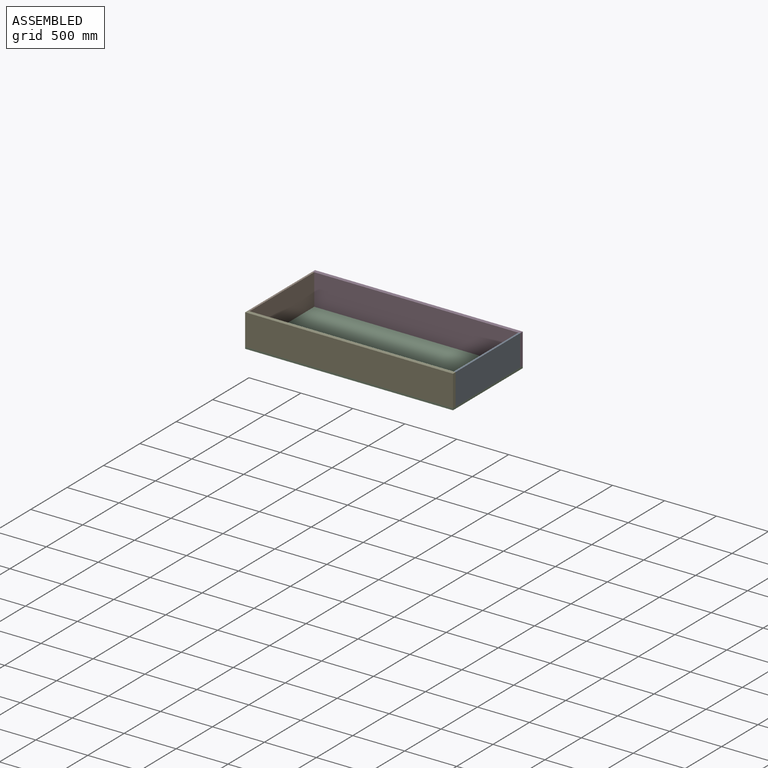
[diagram: assembled view]
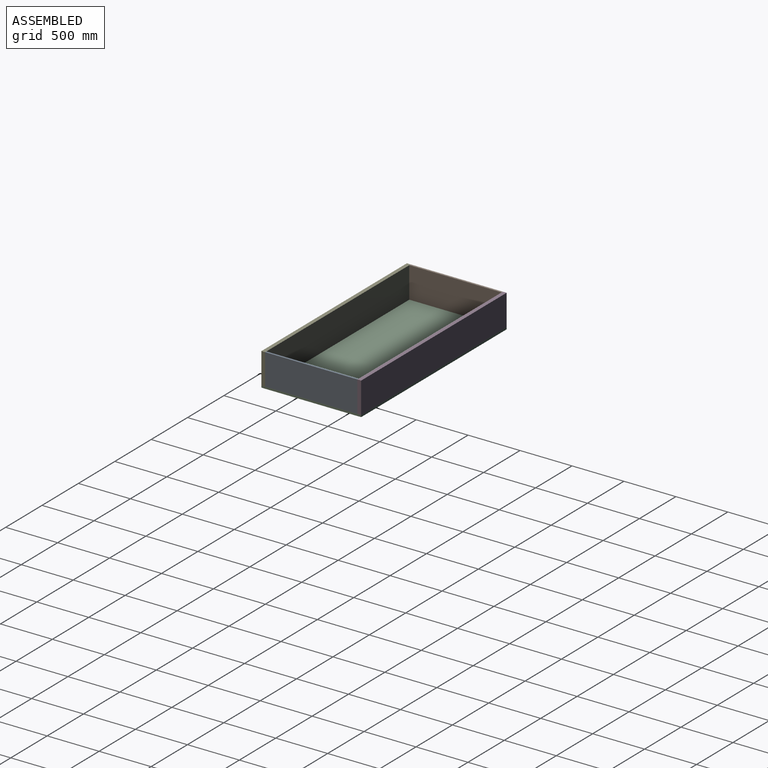
[diagram: assembled view, second angle]
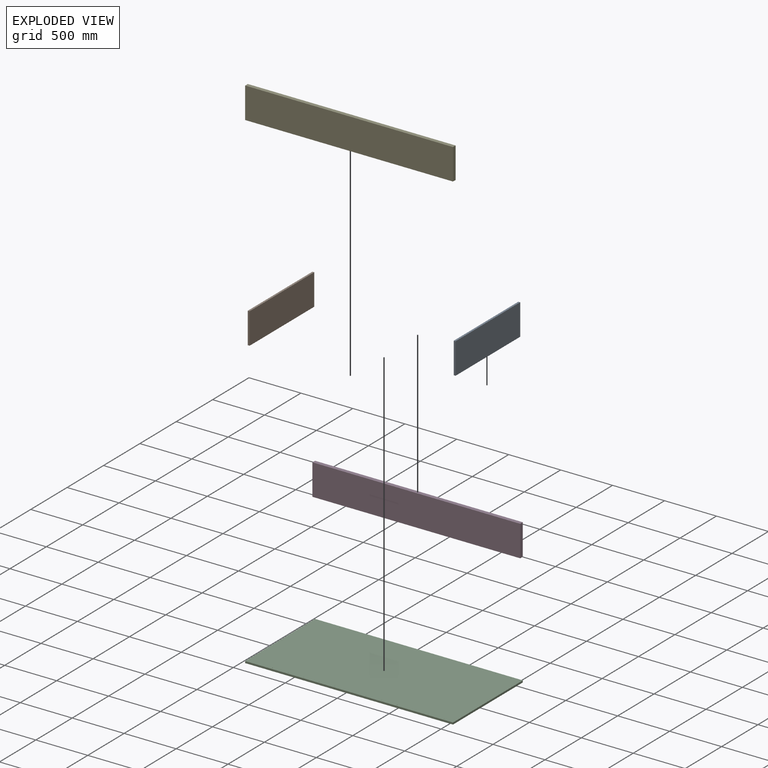
[diagram: exploded view]
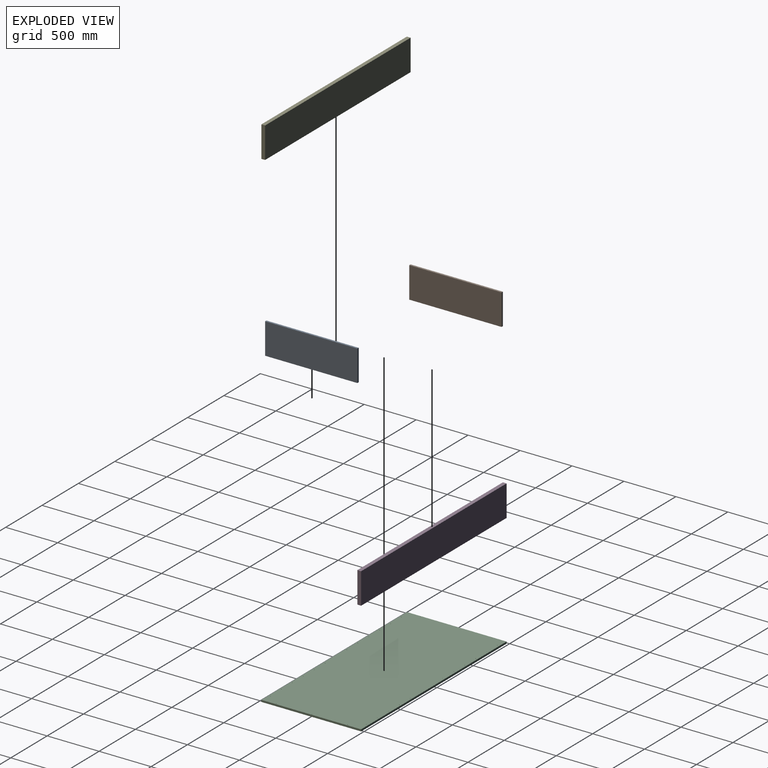
[diagram: exploded view, second angle]
ASSEMBLY  parts=5 mates=4
PART A: 12 faces, bbox 888x18x300 mm
  f0: plane 888x300mm, normal (0,1,0), area 266400mm2, adj f1,f3,f4,f5
  f1: plane 300x18mm, normal (-1,0,0), area 5400mm2, adj f0,f2,f4,f5
  f2: plane 888x300mm, normal (0,-1,0), area 266400mm2, adj f1,f3,f4,f5
  f3: plane 300x18mm, normal (1,0,0), area 5400mm2, adj f0,f2,f4,f5
  f4: plane 888x18mm, normal (0,0,1), area 15925.1mm2, adj f0,f1,f2,f3,f7,f9,f11
  f5: plane 888x18mm, normal (0,0,-1), area 15984mm2, adj f0,f1,f2,f3
  f6: cone r=0mm half-angle=59deg, axis (0,0,1), area 22.9mm2, adj f7
  f7: cylinder r=2.5mm len=12mm, axis (0,0,1), area 188.5mm2, adj f4,f6
  f8: cone r=0mm half-angle=59deg, axis (0,0,1), area 22.9mm2, adj f9
  f9: cylinder r=2.5mm len=12mm, axis (0,0,1), area 188.5mm2, adj f4,f8
  f10: cone r=0mm half-angle=59deg, axis (0,0,1), area 22.9mm2, adj f11
  f11: cylinder r=2.5mm len=12mm, axis (0,0,1), area 188.5mm2, adj f4,f10
PART B: same geometry as A
PART C: 36 faces, bbox 2000x960x18 mm
  f0: plane 2000x18mm, normal (0,1,0), area 36000mm2, adj f1,f3,f4,f5
  f1: plane 960x18mm, normal (-1,0,0), area 17280mm2, adj f0,f2,f4,f5
  f2: plane 2000x18mm, normal (0,-1,0), area 36000mm2, adj f1,f3,f4,f5
  f3: plane 960x18mm, normal (1,0,0), area 17280mm2, adj f0,f2,f4,f5
  f4: plane 2000x960mm, normal (0,0,1), area 1919411mm2, adj f0,f1,f2,f3,f6,f7,f8,f9
  f5: plane 2000x960mm, normal (0,0,-1), area 1919411mm2, adj f0,f1,f2,f3,f6,f7,f8,f9
  f6: cylinder r=2.5mm len=18mm, axis (0,0,-1), area 282.7mm2, adj f4,f5
  f7: cylinder r=2.5mm len=18mm, axis (0,0,-1), area 282.7mm2, adj f4,f5
  f8: cylinder r=2.5mm len=18mm, axis (0,0,-1), area 282.7mm2, adj f4,f5
  f9: cylinder r=2.5mm len=18mm, axis (0,0,-1), area 282.7mm2, adj f4,f5
  f10: cylinder r=2.5mm len=18mm, axis (0,0,-1), area 282.7mm2, adj f4,f5
  f11: cylinder r=2.5mm len=18mm, axis (0,0,-1), area 282.7mm2, adj f4,f5
  f12: cylinder r=2.5mm len=18mm, axis (0,0,-1), area 282.7mm2, adj f4,f5
  f13: cylinder r=2.5mm len=18mm, axis (0,0,-1), area 282.7mm2, adj f4,f5
  f14: cylinder r=2.5mm len=18mm, axis (0,0,-1), area 282.7mm2, adj f4,f5
  f15: cylinder r=2.5mm len=18mm, axis (0,0,-1), area 282.7mm2, adj f4,f5
  f16: cylinder r=2.5mm len=18mm, axis (0,0,-1), area 282.7mm2, adj f4,f5
  f17: cylinder r=2.5mm len=18mm, axis (0,0,-1), area 282.7mm2, adj f4,f5
  f18: cylinder r=2.5mm len=18mm, axis (0,0,1), area 282.7mm2, adj f4,f5
  f19: cylinder r=2.5mm len=18mm, axis (0,0,1), area 282.7mm2, adj f4,f5
  f20: cylinder r=2.5mm len=18mm, axis (0,0,1), area 282.7mm2, adj f4,f5
  f21: cylinder r=2.5mm len=18mm, axis (0,0,1), area 282.7mm2, adj f4,f5
  f22: cylinder r=2.5mm len=18mm, axis (0,0,1), area 282.7mm2, adj f4,f5
  f23: cylinder r=2.5mm len=18mm, axis (0,0,1), area 282.7mm2, adj f4,f5
  f24: cylinder r=2.5mm len=18mm, axis (0,0,1), area 282.7mm2, adj f4,f5
  f25: cylinder r=2.5mm len=18mm, axis (0,0,1), area 282.7mm2, adj f4,f5
  f26: cylinder r=2.5mm len=18mm, axis (0,0,1), area 282.7mm2, adj f4,f5
  f27: cylinder r=2.5mm len=18mm, axis (0,0,1), area 282.7mm2, adj f4,f5
  f28: cylinder r=2.5mm len=18mm, axis (0,0,1), area 282.7mm2, adj f4,f5
  f29: cylinder r=2.5mm len=18mm, axis (0,0,1), area 282.7mm2, adj f4,f5
  f30: cylinder r=2.5mm len=18mm, axis (0,0,1), area 282.7mm2, adj f4,f5
  f31: cylinder r=2.5mm len=18mm, axis (0,0,1), area 282.7mm2, adj f4,f5
  f32: cylinder r=2.5mm len=18mm, axis (0,0,1), area 282.7mm2, adj f4,f5
  f33: cylinder r=2.5mm len=18mm, axis (0,0,1), area 282.7mm2, adj f4,f5
  f34: cylinder r=2.5mm len=18mm, axis (0,0,1), area 282.7mm2, adj f4,f5
  f35: cylinder r=2.5mm len=18mm, axis (0,0,1), area 282.7mm2, adj f4,f5
PART D: 30 faces, bbox 2000x36x300 mm
  f0: plane 2000x300mm, normal (0,1,0), area 600000mm2, adj f1,f3,f4,f5
  f1: plane 300x36mm, normal (-1,0,0), area 10800mm2, adj f0,f2,f4,f5
  f2: plane 2000x300mm, normal (0,-1,0), area 600000mm2, adj f1,f3,f4,f5
  f3: plane 300x36mm, normal (1,0,0), area 10800mm2, adj f0,f2,f4,f5
  f4: plane 2000x36mm, normal (0,0,1), area 72000mm2, adj f0,f1,f2,f3
  f5: plane 2000x36mm, normal (0,0,-1), area 71764.4mm2, adj f0,f1,f2,f3,f7,f9,f11,f13
  f6: cone r=0mm half-angle=59deg, axis (0,0,-1), area 22.9mm2, adj f7
  f7: cylinder r=2.5mm len=12mm, axis (0,0,-1), area 188.5mm2, adj f5,f6
  f8: cone r=0mm half-angle=59deg, axis (0,0,-1), area 22.9mm2, adj f9
  f9: cylinder r=2.5mm len=12mm, axis (0,0,-1), area 188.5mm2, adj f5,f8
  f10: cone r=0mm half-angle=59deg, axis (0,0,-1), area 22.9mm2, adj f11
  f11: cylinder r=2.5mm len=12mm, axis (0,0,-1), area 188.5mm2, adj f5,f10
  f12: cone r=0mm half-angle=59deg, axis (0,0,-1), area 22.9mm2, adj f13
  f13: cylinder r=2.5mm len=12mm, axis (0,0,-1), area 188.5mm2, adj f5,f12
  f14: cone r=0mm half-angle=59deg, axis (0,0,-1), area 22.9mm2, adj f15
  f15: cylinder r=2.5mm len=12mm, axis (0,0,-1), area 188.5mm2, adj f5,f14
  f16: cone r=0mm half-angle=59deg, axis (0,0,-1), area 22.9mm2, adj f17
  f17: cylinder r=2.5mm len=12mm, axis (0,0,-1), area 188.5mm2, adj f5,f16
  f18: cone r=0mm half-angle=59deg, axis (0,0,-1), area 22.9mm2, adj f19
  f19: cylinder r=2.5mm len=12mm, axis (0,0,-1), area 188.5mm2, adj f5,f18
  f20: cone r=0mm half-angle=59deg, axis (0,0,-1), area 22.9mm2, adj f21
  f21: cylinder r=2.5mm len=12mm, axis (0,0,-1), area 188.5mm2, adj f5,f20
  f22: cone r=0mm half-angle=59deg, axis (0,0,-1), area 22.9mm2, adj f23
  f23: cylinder r=2.5mm len=12mm, axis (0,0,-1), area 188.5mm2, adj f5,f22
  f24: cone r=0mm half-angle=59deg, axis (0,0,-1), area 22.9mm2, adj f25
  f25: cylinder r=2.5mm len=12mm, axis (0,0,-1), area 188.5mm2, adj f5,f24
  f26: cone r=0mm half-angle=59deg, axis (0,0,-1), area 22.9mm2, adj f27
  f27: cylinder r=2.5mm len=12mm, axis (0,0,-1), area 188.5mm2, adj f5,f26
  f28: cone r=0mm half-angle=59deg, axis (0,0,-1), area 22.9mm2, adj f29
  f29: cylinder r=2.5mm len=12mm, axis (0,0,-1), area 188.5mm2, adj f5,f28
PART E: same geometry as D
PLACE A rot(axis=(0.71,0.71,0),180deg) t=(562.44,42.17,-144.19)mm
PLACE B rot(axis=(0.71,0.71,0),180deg) t=(-1419.56,42.17,-144.19)mm
PLACE C t=(-428.56,42.17,-462.19)mm
PLACE D rot(axis=(0,0,1),180deg) t=(-428.56,504.17,-444.19)mm
PLACE E t=(-428.56,-419.83,-444.19)mm
MATE fastened B.f6 <-> C.f31  axis (0,0,-1) through (-1419.56,386.17,-444.19)mm
MATE fastened D.f28 <-> C.f18  axis (0,0,-1) through (-1328.56,504.17,-444.19)mm
MATE fastened E.f22 <-> C.f7  axis (0,0,-1) through (-1328.56,-419.83,-444.19)mm
MATE fastened A.f8 <-> C.f35  axis (0,0,-1) through (562.44,42.17,-444.19)mm
